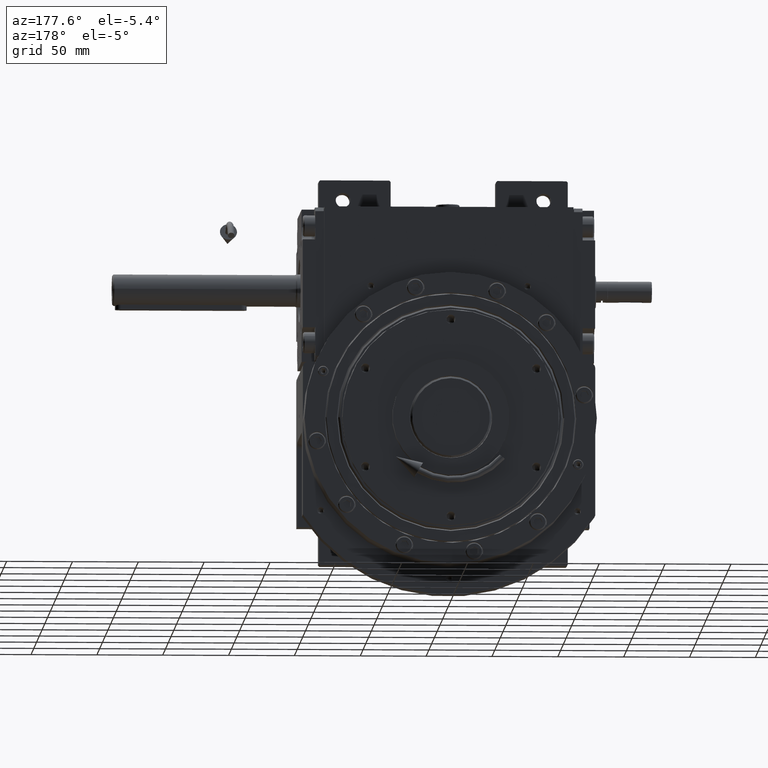
[diagram: clean part render]
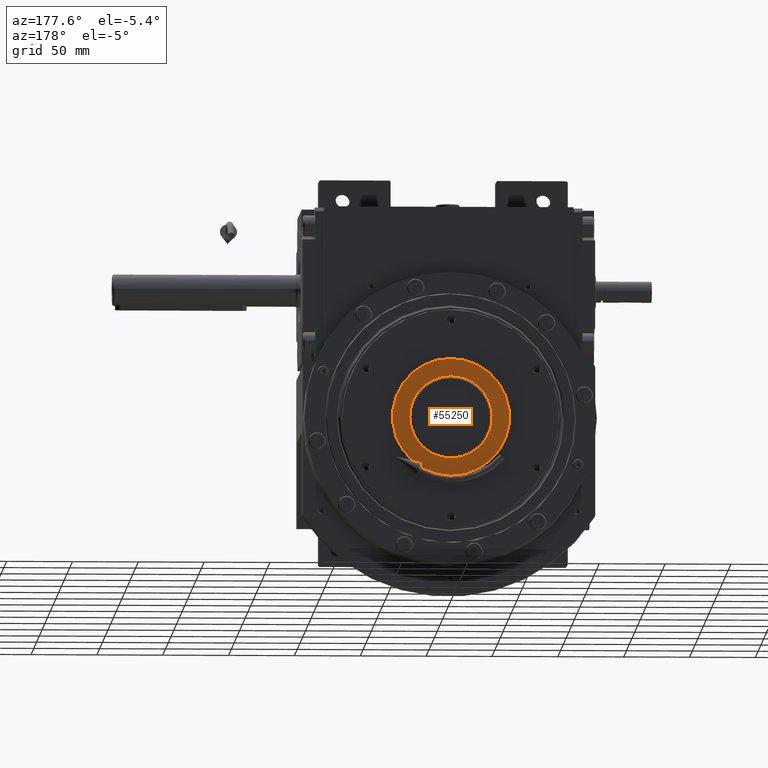
[diagram: same view with one face highlighted and labeled with its STEP entity id]
A machine part, auxiliary view. The second image highlights one B-rep face of the part: STEP entity #55250.
In plain terms, the highlighted planar face has unit normal (0, -1, -0).
Its self-contained STEP definition (entity closure, byte-faithful):
#291 = FACE_BOUND ( 'NONE', #36049, .T. ) ;
#312 = B_SPLINE_CURVE_WITH_KNOTS ( 'NONE', 3,
 ( #38147, #22862, #32921, #37813, #65212, #47861, #58979, #64530, #6558, #17664, #16313, #48883, #38825, #42663, #53063, #22524, #667, #21844, #27730, #21518, #28069, #53750, #1009, #49225, #5536, #1362, #43341, #43675, #64877, #38477, #59650, #12123, #33259, #6898, #54429, #13859, #13155, #18010, #34294, #50947, #50603, #49560, #3067, #45387 ),
 .UNSPECIFIED., .F., .F.,
 ( 4, 1, 1, 1, 2, 2, 2, 2, 2, 2, 2, 2, 2, 2, 2, 2, 2, 2, 2, 1, 1, 1, 2, 2, 4 ),
 ( 0.000000000000000000, 0.03125000000000013184, 0.04687500000000019429, 0.05468750000000021511, 0.05859375000000022898, 0.06250000000000023592, 0.1250000000000001110, 0.1875000000000000555, 0.2500000000000000000, 0.3124999999999999445, 0.3749999999999998335, 0.4374999999999997780, 0.4999999999999997224, 0.5624999999999996669, 0.6249999999999996669, 0.6874999999999996669, 0.7499999999999996669, 0.8124999999999997780, 0.8749999999999997780, 0.9062499999999997780, 0.9218749999999997780, 0.9296874999999997780, 0.9335937499999997780, 0.9374999999999998890, 1.000000000000000000 ),
 .UNSPECIFIED. ) ;
#667 = CARTESIAN_POINT ( 'NONE',  ( 15.66544372651529748, 116.4999999999999858, 27.13836624114552976 ) ) ;
#1009 = CARTESIAN_POINT ( 'NONE',  ( -2.053096772983492802, 116.5000000000000142, 31.26798409011517066 ) ) ;
#1362 = CARTESIAN_POINT ( 'NONE',  ( -10.06873742141280914, 116.5000000000000284, 29.67359883406298948 ) ) ;
#3067 = CARTESIAN_POINT ( 'NONE',  ( -31.26520908302585156, 116.5000000000000568, 2.066576479616947903 ) ) ;
#4134 = CARTESIAN_POINT ( 'NONE',  ( -27.13930658515473127, 116.5000000000000142, -15.66362819286392138 ) ) ;
#4974 = B_SPLINE_CURVE_WITH_KNOTS ( 'NONE', 3,
 ( #56004, #34494, #8819, #19244, #7777, #40040, #13704, #60193, #23732, #49408, #7425, #34845, #28594, #66081, #39356, #12659, #8130, #18890, #8475, #50792, #33794, #61219, #44897 ),
 .UNSPECIFIED., .F., .F.,
 ( 4, 2, 2, 2, 2, 2, 2, 1, 1, 1, 2, 2, 4 ),
 ( 0.5000001637338380434, 0.5625001432671082879, 0.6250001228003785325, 0.6875001023336486661, 0.7500000818669190217, 0.8125000614001891552, 0.8750000409334593998, 0.9062500307000944666, 0.9218750255834120555, 0.9296875230250708499, 0.9335937717459001917, 0.9375000204667296444, 1.000000000000000000 ),
 .UNSPECIFIED. ) ;
#5535 = CIRCLE ( 'NONE', #21093, 44.45000000000000284 ) ;
#5536 = CARTESIAN_POINT ( 'NONE',  ( -8.114142232209740513, 116.5000000000000000, 30.26646497918384782 ) ) ;
#6558 = CARTESIAN_POINT ( 'NONE',  ( 30.26588095728753913, 116.5000000000000000, 8.115005249810986143 ) ) ;
#6898 = CARTESIAN_POINT ( 'NONE',  ( -28.10324012942901817, 116.5000000000000284, 13.86017793222154459 ) ) ;
#7184 = AXIS2_PLACEMENT_3D ( 'NONE', #40095, #38716, #33845 ) ;
#7425 = CARTESIAN_POINT ( 'NONE',  ( 24.85746897425208246, 116.5000000000000142, -19.07864313407223733 ) ) ;
#7777 = CARTESIAN_POINT ( 'NONE',  ( 10.06874959860269492, 116.5000000000000142, -29.67359464129410895 ) ) ;
#8130 = CARTESIAN_POINT ( 'NONE',  ( 30.48100272070934125, 116.5000000000000426, -6.977459271933864393 ) ) ;
#8475 = CARTESIAN_POINT ( 'NONE',  ( 30.61621659659163441, 116.4999999999999858, -6.350045747762366410 ) ) ;
#8819 = CARTESIAN_POINT ( 'NONE',  ( 4.086082564326950717, 116.5000000000000284, -31.06778845133732148 ) ) ;
#9016 = CARTESIAN_POINT ( 'NONE',  ( -30.83046936905267899, 116.5000000000000142, -5.221620189777508969 ) ) ;
#9724 = VERTEX_POINT ( 'NONE', #14744 ) ;
#10038 = CARTESIAN_POINT ( 'NONE',  ( -24.85759955026993140, 116.5000000000000568, -19.07855545183808843 ) ) ;
#10386 = CARTESIAN_POINT ( 'NONE',  ( -8.113097104373730772, 116.5000000000000426, -30.26660030804410439 ) ) ;
#12123 = CARTESIAN_POINT ( 'NONE',  ( -24.85746488858378811, 116.5000000000000284, 19.07864854071386418 ) ) ;
#12659 = CARTESIAN_POINT ( 'NONE',  ( 30.27389646669564627, 116.4999999999999716, -7.850093676631416884 ) ) ;
#13155 = CARTESIAN_POINT ( 'NONE',  ( -30.27389581993057277, 116.5000000000000000, 7.850096192811432338 ) ) ;
#13704 = CARTESIAN_POINT ( 'NONE',  ( 15.66450469412359503, 116.4999999999999858, -27.13889321604035842 ) ) ;
#13859 = CARTESIAN_POINT ( 'NONE',  ( -29.79683537730148757, 116.5000000000000000, 9.575090709668126365 ) ) ;
#14744 = CARTESIAN_POINT ( 'NONE',  ( -1.995051177256164914E-09, 116.4999999999999574, -31.26788886524128941 ) ) ;
#14888 = EDGE_CURVE ( 'NONE', #15839, #63517, #312, .T. ) ;
#15839 = VERTEX_POINT ( 'NONE', #19494 ) ;
#15953 = PLANE ( 'NONE',  #22089 ) ;
#16313 = CARTESIAN_POINT ( 'NONE',  ( 28.10283574389681505, 116.4999999999999858, 13.86133852400377897 ) ) ;
#17664 = CARTESIAN_POINT ( 'NONE',  ( 29.67292009366382999, 116.5000000000000142, 10.07059145448450010 ) ) ;
#18010 = CARTESIAN_POINT ( 'NONE',  ( -30.48100220693948970, 116.4999999999999716, 6.977461523368218899 ) ) ;
#18890 = CARTESIAN_POINT ( 'NONE',  ( 30.56302886948804698, 116.5000000000000000, -6.601300797555798461 ) ) ;
#19244 = CARTESIAN_POINT ( 'NONE',  ( 8.114155153269566156, 116.5000000000000142, -30.26646147271089049 ) ) ;
#19401 = DIRECTION ( 'NONE',  ( 1.000000000000000000, -3.122111992759157471E-16, 0.000000000000000000 ) ) ;
#19494 = CARTESIAN_POINT ( 'NONE',  ( 31.26791174109628457, 116.5000100331852053, -3.475374177538845233E-07 ) ) ;
#20450 = CARTESIAN_POINT ( 'NONE',  ( -29.67291904149632131, 116.5000000000000142, -10.07059468067895658 ) ) ;
#20801 = FACE_OUTER_BOUND ( 'NONE', #40253, .T. ) ;
#21093 = AXIS2_PLACEMENT_3D ( 'NONE', #24934, #66936, #19401 ) ;
#21518 = CARTESIAN_POINT ( 'NONE',  ( 8.113110194579608248, 116.5000000000000284, 30.26659676686673706 ) ) ;
#21608 = ORIENTED_EDGE ( 'NONE', *, *, #63353, .T. ) ;
#21844 = CARTESIAN_POINT ( 'NONE',  ( 13.86161189088838874, 116.4999999999999858, 28.10233327774909640 ) ) ;
#22089 = AXIS2_PLACEMENT_3D ( 'NONE', #64150, #63815, #37108 ) ;
#22524 = CARTESIAN_POINT ( 'NONE',  ( 19.07785114619634825, 116.5000000000000142, 24.85799940880686876 ) ) ;
#22788 = EDGE_CURVE ( 'NONE', #33014, #30053, #41578, .T. ) ;
#22862 = CARTESIAN_POINT ( 'NONE',  ( 31.26661249927465391, 116.5000000000000142, 1.033138770720428257 ) ) ;
#23061 = ORIENTED_EDGE ( 'NONE', *, *, #14888, .T. ) ;
#23732 = CARTESIAN_POINT ( 'NONE',  ( 20.65878587691165436, 116.5000000000000142, -23.56066966652879202 ) ) ;
#24568 = ORIENTED_EDGE ( 'NONE', *, *, #67803, .T. ) ;
#24934 = CARTESIAN_POINT ( 'NONE',  ( 2.131628207280297402E-14, 116.5000000000000000, -7.703719777548943412E-31 ) ) ;
#25308 = CARTESIAN_POINT ( 'NONE',  ( -31.26791174109665761, 116.5000100331852053, 3.475374250843279833E-07 ) ) ;
#25988 = CARTESIAN_POINT ( 'NONE',  ( -1.995051177256164914E-09, 116.4999999999999574, -31.26788886524128941 ) ) ;
#26318 = CARTESIAN_POINT ( 'NONE',  ( -31.19052070253871634, 116.4999999999999716, -2.570251171518876721 ) ) ;
#27730 = CARTESIAN_POINT ( 'NONE',  ( 10.07005390161416969, 116.5000000000000142, 29.67312748738769912 ) ) ;
#28069 = CARTESIAN_POINT ( 'NONE',  ( 4.087162932498118906, 116.5000000000000426, 31.06763634548207165 ) ) ;
#28594 = CARTESIAN_POINT ( 'NONE',  ( 28.10324217889609955, 116.5000000000000426, -13.86017367120673249 ) ) ;
#30053 = VERTEX_POINT ( 'NONE', #41381 ) ;
#31185 = CARTESIAN_POINT ( 'NONE',  ( -31.26661249883685301, 116.4999999999999716, -1.033139109068540451 ) ) ;
#31537 = CARTESIAN_POINT ( 'NONE',  ( -2.053113481735681756, 116.5000000000000284, -31.26791487345469989 ) ) ;
#32921 = CARTESIAN_POINT ( 'NONE',  ( 31.19052075215515174, 116.4999999999999858, 2.570250333919971375 ) ) ;
#33014 = VERTEX_POINT ( 'NONE', #66417 ) ;
#33259 = CARTESIAN_POINT ( 'NONE',  ( -27.13939157298998595, 116.5000000000000284, 15.66357593164732442 ) ) ;
#33744 = ORIENTED_EDGE ( 'NONE', *, *, #45721, .T. ) ;
#33794 = CARTESIAN_POINT ( 'NONE',  ( 31.06494594057658531, 116.5000000000000142, -4.099264542564737823 ) ) ;
#33845 = DIRECTION ( 'NONE',  ( 1.000000000000000000, -3.122111992759157471E-16, 0.000000000000000000 ) ) ;
#34294 = CARTESIAN_POINT ( 'NONE',  ( -30.56302840830642253, 116.5000000000000142, 6.601302934103654430 ) ) ;
#34494 = CARTESIAN_POINT ( 'NONE',  ( 2.053112133089433300, 116.5000000000000284, -31.26798304087521174 ) ) ;
#34845 = CARTESIAN_POINT ( 'NONE',  ( 27.13939421263579987, 116.5000000000000142, -15.66357127335540866 ) ) ;
#36049 = EDGE_LOOP ( 'NONE', ( #21608, #33744, #23061 ) ) ;
#36066 = CARTESIAN_POINT ( 'NONE',  ( -30.26588030596531809, 116.5000000000000284, -8.115007851786289805 ) ) ;
#37108 = DIRECTION ( 'NONE',  ( -1.000000000000000000, 1.836909530733564901E-16, 0.000000000000000000 ) ) ;
#37756 = CARTESIAN_POINT ( 'NONE',  ( -31.26791174109665761, 116.5000100331852053, 3.475374250843279833E-07 ) ) ;
#37813 = CARTESIAN_POINT ( 'NONE',  ( 30.97209530925913157, 116.5000000000000000, 4.341503120110843383 ) ) ;
#38147 = CARTESIAN_POINT ( 'NONE',  ( 31.26791174109628457, 116.5000100331852053, -3.475374177538845233E-07 ) ) ;
#38477 = CARTESIAN_POINT ( 'NONE',  ( -20.65877929373934663, 116.5000000000000284, 23.56067550690703882 ) ) ;
#38716 = DIRECTION ( 'NONE',  ( -3.197042680585380437E-16, -1.000000000000000000, -2.395852276087254179E-17 ) ) ;
#38825 = CARTESIAN_POINT ( 'NONE',  ( 24.85760359141537990, 116.5000000000000426, 19.07855011180415872 ) ) ;
#39356 = CARTESIAN_POINT ( 'NONE',  ( 29.79683633121485542, 116.4999999999999716, -9.575087677288227184 ) ) ;
#40040 = CARTESIAN_POINT ( 'NONE',  ( 13.86287316035972950, 116.5000000000000000, -28.10187253233300453 ) ) ;
#40095 = CARTESIAN_POINT ( 'NONE',  ( 2.131628207280297402E-14, 116.5000000000000000, -7.703719777548943412E-31 ) ) ;
#40253 = EDGE_LOOP ( 'NONE', ( #58664, #24568 ) ) ;
#40918 = CARTESIAN_POINT ( 'NONE',  ( -30.97209511735416854, 116.5000000000000284, -4.341504525694102945 ) ) ;
#41381 = CARTESIAN_POINT ( 'NONE',  ( -44.45000000000026574, 116.5000000000000000, -3.629036681470304302E-15 ) ) ;
#41578 = CIRCLE ( 'NONE', #7184, 44.45000000000000284 ) ;
#41926 = CARTESIAN_POINT ( 'NONE',  ( -15.66543447339032191, 116.4999999999999858, -27.13837163548624076 ) ) ;
#42663 = CARTESIAN_POINT ( 'NONE',  ( 23.56106954454600455, 116.5000000000000142, 20.65840718858126479 ) ) ;
#43341 = CARTESIAN_POINT ( 'NONE',  ( -13.86286297338907580, 116.5000000000000000, 28.10187760395040613 ) ) ;
#43675 = CARTESIAN_POINT ( 'NONE',  ( -15.66449533152382934, 116.5000000000000284, 27.13889868369006564 ) ) ;
#44897 = CARTESIAN_POINT ( 'NONE',  ( 31.26791174109628457, 116.5000100331852053, -3.475374177538845233E-07 ) ) ;
#45240 = B_SPLINE_CURVE_WITH_KNOTS ( 'NONE', 3,
 ( #25308, #31185, #26318, #40918, #9016, #47466, #46793, #51664, #36066, #20450, #57908, #4134, #10038, #67669, #62776, #51997, #41926, #62107, #63112, #10386, #63169, #31537, #25988 ),
 .UNSPECIFIED., .F., .F.,
 ( 4, 1, 1, 1, 2, 2, 2, 2, 2, 2, 2, 2, 4 ),
 ( 0.000000000000000000, 0.03125001023336500261, 0.04687501535004749698, 0.05468751790838874416, 0.05859376918755936081, 0.06250002046672996359, 0.1250000409334597051, 0.1875000614001894328, 0.2500000818669191327, 0.3125001023336488881, 0.3750001228003786435, 0.4375001432671083434, 0.5000001637338380434 ),
 .UNSPECIFIED. ) ;
#45387 = CARTESIAN_POINT ( 'NONE',  ( -31.26791174109665761, 116.5000100331852053, 3.475374250843279833E-07 ) ) ;
#45721 = EDGE_CURVE ( 'NONE', #9724, #15839, #4974, .T. ) ;
#46793 = CARTESIAN_POINT ( 'NONE',  ( -30.71618859057409878, 116.4999999999999858, -5.848043587430617585 ) ) ;
#47466 = CARTESIAN_POINT ( 'NONE',  ( -30.76282698641436042, 116.5000000000000284, -5.597631685883778019 ) ) ;
#47861 = CARTESIAN_POINT ( 'NONE',  ( 30.76282731482920596, 116.4999999999999716, 5.597629880542465131 ) ) ;
#48883 = CARTESIAN_POINT ( 'NONE',  ( 27.13930926867397631, 116.5000000000000284, 15.66362346839575359 ) ) ;
#49225 = CARTESIAN_POINT ( 'NONE',  ( -4.086067785040780720, 116.5000000000000426, 31.06779045544246287 ) ) ;
#49408 = CARTESIAN_POINT ( 'NONE',  ( 23.56094898208171884, 116.5000000000000000, -20.65865893575728762 ) ) ;
#49560 = CARTESIAN_POINT ( 'NONE',  ( -31.06494580941703632, 116.5000000000000284, 4.099265873857270037 ) ) ;
#50603 = CARTESIAN_POINT ( 'NONE',  ( -30.64229771868184926, 116.5000000000000426, 6.222993749043703282 ) ) ;
#50792 = CARTESIAN_POINT ( 'NONE',  ( 30.64229812569510258, 116.5000000000000000, -6.222991745892756832 ) ) ;
#50947 = CARTESIAN_POINT ( 'NONE',  ( -30.61621616948886171, 116.5000000000000000, 6.350047807402763311 ) ) ;
#51664 = CARTESIAN_POINT ( 'NONE',  ( -30.69231964725714334, 116.5000000000000000, -5.972002738410782108 ) ) ;
#51997 = CARTESIAN_POINT ( 'NONE',  ( -19.07784363752278978, 116.5000000000000284, -24.85800521565971266 ) ) ;
#53063 = CARTESIAN_POINT ( 'NONE',  ( 20.65867620835433982, 116.5000000000000426, 23.56087162834694482 ) ) ;
#53750 = CARTESIAN_POINT ( 'NONE',  ( 2.053129048722332151, 116.5000000000000284, 31.26791382369304628 ) ) ;
#54429 = CARTESIAN_POINT ( 'NONE',  ( -29.28018756600016204, 116.5000000000000426, 11.01890060063716348 ) ) ;
#55250 = ADVANCED_FACE ( 'NONE', ( #291, #20801 ), #15953, .F. ) ;
#56004 = CARTESIAN_POINT ( 'NONE',  ( -1.995051177256164914E-09, 116.4999999999999574, -31.26788886524128941 ) ) ;
#57908 = CARTESIAN_POINT ( 'NONE',  ( -28.10283371115254170, 116.5000000000000000, -13.86134274589188209 ) ) ;
#58664 = ORIENTED_EDGE ( 'NONE', *, *, #22788, .F. ) ;
#58979 = CARTESIAN_POINT ( 'NONE',  ( 30.71618894942462319, 116.5000000000000142, 5.848041702671882724 ) ) ;
#59650 = CARTESIAN_POINT ( 'NONE',  ( -23.56094416087320909, 116.5000000000000142, 20.65866449915798242 ) ) ;
#60193 = CARTESIAN_POINT ( 'NONE',  ( 19.07874025736007439, 116.5000000000000000, -24.85747324367101996 ) ) ;
#61219 = CARTESIAN_POINT ( 'NONE',  ( 31.26520908392321019, 116.5000000000000284, -2.066575802867687273 ) ) ;
#62107 = CARTESIAN_POINT ( 'NONE',  ( -13.86160157078569100, 116.5000000000000142, -28.10233840555498119 ) ) ;
#62776 = CARTESIAN_POINT ( 'NONE',  ( -20.65866969450216573, 116.5000000000000000, -23.56087740024491950 ) ) ;
#63112 = CARTESIAN_POINT ( 'NONE',  ( -10.07004187268707263, 116.5000000000000000, -29.67313161849530445 ) ) ;
#63169 = CARTESIAN_POINT ( 'NONE',  ( -4.087148336983775998, 116.5000000000000142, -31.06763831290435007 ) ) ;
#63353 = EDGE_CURVE ( 'NONE', #63517, #9724, #45240, .T. ) ;
#63517 = VERTEX_POINT ( 'NONE', #37756 ) ;
#63815 = DIRECTION ( 'NONE',  ( -1.836909530733564901E-16, -1.000000000000000000, -4.632011979606505031E-33 ) ) ;
#64150 = CARTESIAN_POINT ( 'NONE',  ( 2.140917140532739039E-14, 116.5000000000000000, 7.703719777548943412E-31 ) ) ;
#64530 = CARTESIAN_POINT ( 'NONE',  ( 30.69232002548471172, 116.5000000000000284, 5.972000795740196821 ) ) ;
#64877 = CARTESIAN_POINT ( 'NONE',  ( -19.07873284917542378, 116.4999999999999716, 24.85747898239193177 ) ) ;
#65212 = CARTESIAN_POINT ( 'NONE',  ( 30.83046965333030798, 116.4999999999999858, 5.221618503820800505 ) ) ;
#66081 = CARTESIAN_POINT ( 'NONE',  ( 29.28018885373977653, 116.5000000000000142, -11.01889714858550740 ) ) ;
#66417 = CARTESIAN_POINT ( 'NONE',  ( 44.44999999999973994, 116.5000000000000000, 1.814518340739676663E-15 ) ) ;
#66936 = DIRECTION ( 'NONE',  ( 3.197042680585380437E-16, 1.000000000000000000, -2.395852276087255412E-17 ) ) ;
#67669 = CARTESIAN_POINT ( 'NONE',  ( -23.56106465311675180, 116.5000000000000142, -20.65841282224111097 ) ) ;
#67803 = EDGE_CURVE ( 'NONE', #33014, #30053, #5535, .T. ) ;